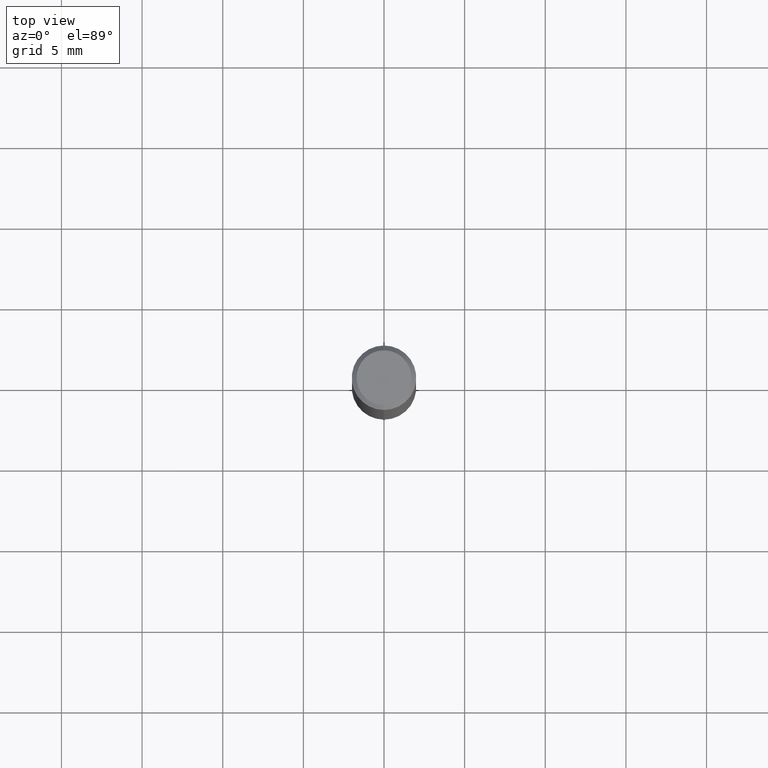
[diagram: clean part render]
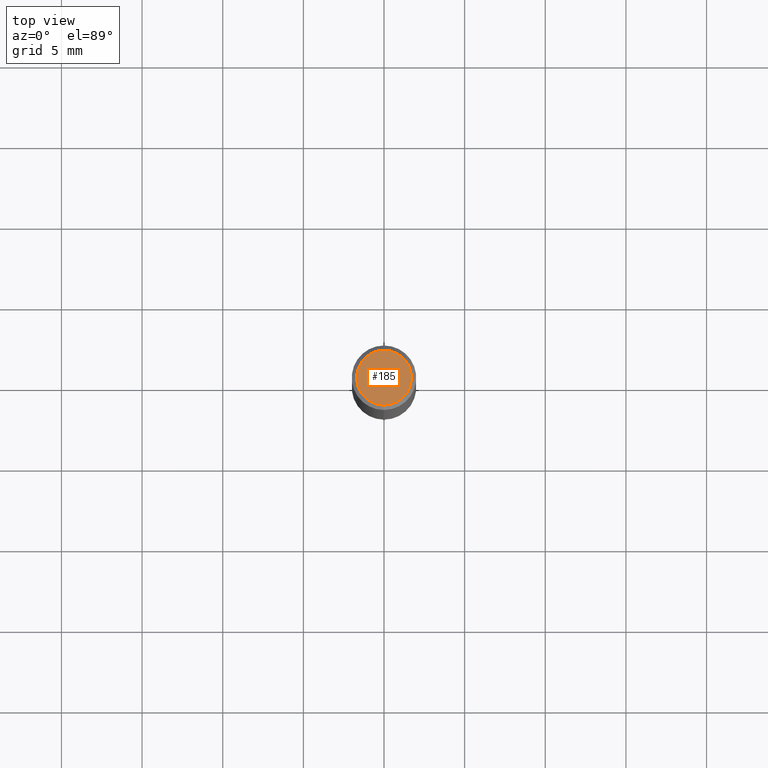
[diagram: same view with one face highlighted and labeled with its STEP entity id]
A machine part, top view. The second image highlights one B-rep face of the part: STEP entity #185.
In plain terms, the highlighted planar face has unit normal (-0, 0, 1).
Its self-contained STEP definition (entity closure, byte-faithful):
#129=EDGE_CURVE('',#205,#253,#303,.T.);
#163=EDGE_CURVE('',#253,#205,#339,.T.);
#185=ADVANCED_FACE('',(#366),#367,.T.);
#205=VERTEX_POINT('',#391);
#253=VERTEX_POINT('',#446);
#303=CIRCLE('',#494,1.7);
#339=CIRCLE('',#545,1.7);
#366=FACE_OUTER_BOUND('',#576,.T.);
#367=PLANE('',#577);
#391=CARTESIAN_POINT('',(0.0,1.7,0.0));
#446=CARTESIAN_POINT('',(2.08183080149804E-016,-1.7,0.0));
#494=AXIS2_PLACEMENT_3D('',#709,#710,#711);
#545=AXIS2_PLACEMENT_3D('',#755,#756,#757);
#576=EDGE_LOOP('',(#798,#799));
#577=AXIS2_PLACEMENT_3D('',#800,#801,#802);
#709=CARTESIAN_POINT('',(0.0,0.0,0.0));
#710=DIRECTION('',(0.0,0.0,-1.0));
#711=DIRECTION('',(0.0,1.0,0.0));
#755=CARTESIAN_POINT('',(0.0,0.0,0.0));
#756=DIRECTION('',(0.0,0.0,-1.0));
#757=DIRECTION('',(0.0,1.0,0.0));
#798=ORIENTED_EDGE('',*,*,#129,.F.);
#799=ORIENTED_EDGE('',*,*,#163,.F.);
#800=CARTESIAN_POINT('',(0.0,0.85,0.0));
#801=DIRECTION('',(-0.0,0.0,1.0));
#802=DIRECTION('',(0.0,-1.0,0.0));